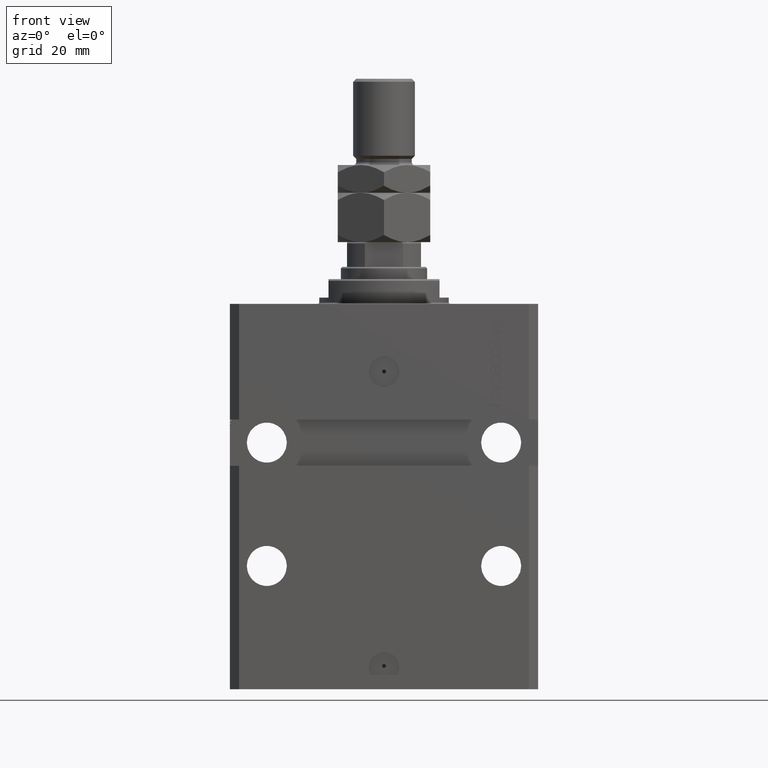
[diagram: clean part render]
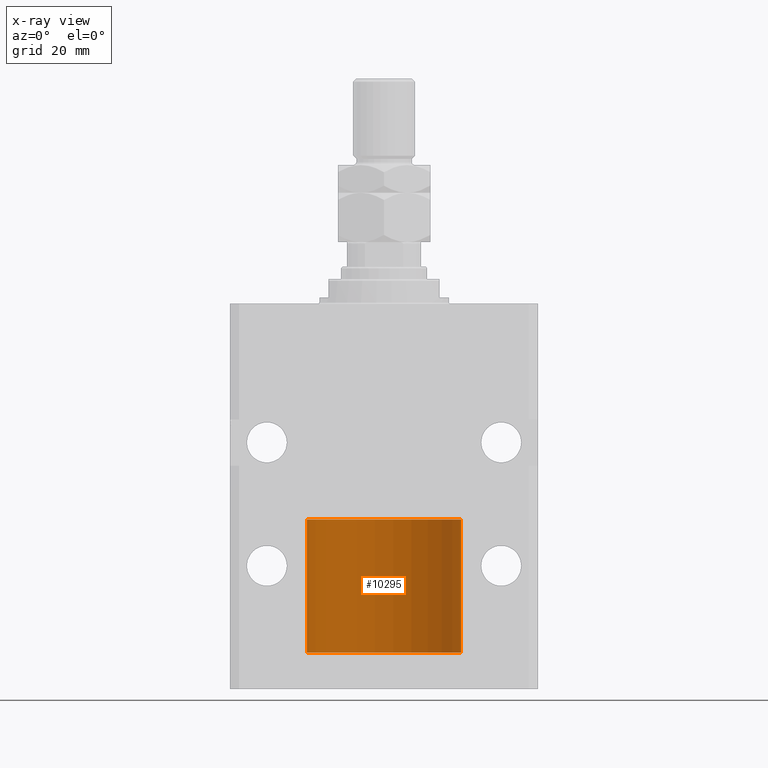
[diagram: x-ray — body ghosted, one internal face saturated and labeled with its STEP entity id]
A machine part, front view, then the same camera in x-ray: the body is ghosted and one INTERNAL B-rep face — a face not visible from any outside direction — is saturated and labeled: STEP entity #10295.
In plain terms, the highlighted cylindrical surface (partial cylindrical patch) has radius 25 mm, axis along (-0, -0, -1).
Its self-contained STEP definition (entity closure, byte-faithful):
#494 = CIRCLE ( 'NONE', #7864, 25.00000000000000000 ) ;
#1824 = DIRECTION ( 'NONE',  ( 1.000000000000000000, 0.000000000000000000, 0.000000000000000000 ) ) ;
#2654 = CARTESIAN_POINT ( 'NONE',  ( 0.000000000000000000, 0.000000000000000000, 43.10000000000000142 ) ) ;
#3330 = EDGE_CURVE ( 'NONE', #26450, #43379, #494, .T. ) ;
#7864 = AXIS2_PLACEMENT_3D ( 'NONE', #41008, #48128, #1824 ) ;
#8987 = VECTOR ( 'NONE', #39046, 1000.000000000000000 ) ;
#10295 = ADVANCED_FACE ( 'NONE', ( #14624 ), #49470, .T. ) ;
#14500 = CARTESIAN_POINT ( 'NONE',  ( 25.00000000000000000, 3.061616997868383043E-15, 0.000000000000000000 ) ) ;
#14624 = FACE_OUTER_BOUND ( 'NONE', #47127, .T. ) ;
#15998 = AXIS2_PLACEMENT_3D ( 'NONE', #34203, #49965, #42093 ) ;
#18430 = CARTESIAN_POINT ( 'NONE',  ( -25.00000000000000000, 0.000000000000000000, 43.10000000000000142 ) ) ;
#19419 = EDGE_CURVE ( 'NONE', #26450, #38203, #49988, .T. ) ;
#19872 = ORIENTED_EDGE ( 'NONE', *, *, #3330, .F. ) ;
#22747 = DIRECTION ( 'NONE',  ( -0.000000000000000000, -0.000000000000000000, -1.000000000000000000 ) ) ;
#24916 = CIRCLE ( 'NONE', #15998, 25.00000000000000000 ) ;
#26450 = VERTEX_POINT ( 'NONE', #27204 ) ;
#26780 = CARTESIAN_POINT ( 'NONE',  ( -25.00000000000000000, 0.000000000000000000, 43.10000000000000142 ) ) ;
#27080 = ORIENTED_EDGE ( 'NONE', *, *, #19419, .T. ) ;
#27204 = CARTESIAN_POINT ( 'NONE',  ( 25.00000000000000000, 3.061616997868383043E-15, 43.10000000000000142 ) ) ;
#27416 = AXIS2_PLACEMENT_3D ( 'NONE', #2654, #44900, #40587 ) ;
#28907 = VERTEX_POINT ( 'NONE', #48444 ) ;
#32818 = VECTOR ( 'NONE', #22747, 1000.000000000000000 ) ;
#34203 = CARTESIAN_POINT ( 'NONE',  ( 0.000000000000000000, 0.000000000000000000, 0.000000000000000000 ) ) ;
#34417 = ORIENTED_EDGE ( 'NONE', *, *, #45449, .T. ) ;
#37703 = EDGE_CURVE ( 'NONE', #43379, #28907, #49467, .T. ) ;
#38203 = VERTEX_POINT ( 'NONE', #14500 ) ;
#39046 = DIRECTION ( 'NONE',  ( -0.000000000000000000, -0.000000000000000000, -1.000000000000000000 ) ) ;
#40587 = DIRECTION ( 'NONE',  ( -1.000000000000000000, 0.000000000000000000, 0.000000000000000000 ) ) ;
#41008 = CARTESIAN_POINT ( 'NONE',  ( 0.000000000000000000, 0.000000000000000000, 43.10000000000000142 ) ) ;
#42093 = DIRECTION ( 'NONE',  ( 1.000000000000000000, 0.000000000000000000, 0.000000000000000000 ) ) ;
#42328 = ORIENTED_EDGE ( 'NONE', *, *, #37703, .F. ) ;
#43338 = CARTESIAN_POINT ( 'NONE',  ( 25.00000000000000000, 3.061616997868383043E-15, 43.10000000000000142 ) ) ;
#43379 = VERTEX_POINT ( 'NONE', #26780 ) ;
#44900 = DIRECTION ( 'NONE',  ( -0.000000000000000000, -0.000000000000000000, -1.000000000000000000 ) ) ;
#45449 = EDGE_CURVE ( 'NONE', #38203, #28907, #24916, .T. ) ;
#47127 = EDGE_LOOP ( 'NONE', ( #19872, #27080, #34417, #42328 ) ) ;
#48128 = DIRECTION ( 'NONE',  ( 0.000000000000000000, 0.000000000000000000, 1.000000000000000000 ) ) ;
#48444 = CARTESIAN_POINT ( 'NONE',  ( -25.00000000000000000, 0.000000000000000000, 0.000000000000000000 ) ) ;
#49467 = LINE ( 'NONE', #18430, #32818 ) ;
#49470 = CYLINDRICAL_SURFACE ( 'NONE', #27416, 25.00000000000000000 ) ;
#49965 = DIRECTION ( 'NONE',  ( 0.000000000000000000, 0.000000000000000000, 1.000000000000000000 ) ) ;
#49988 = LINE ( 'NONE', #43338, #8987 ) ;